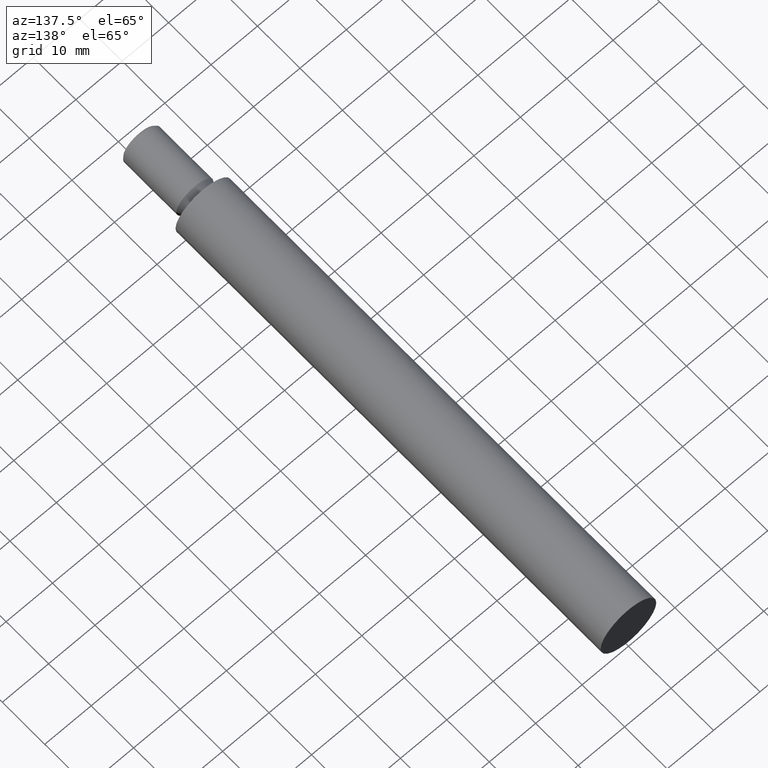
[diagram: clean part render]
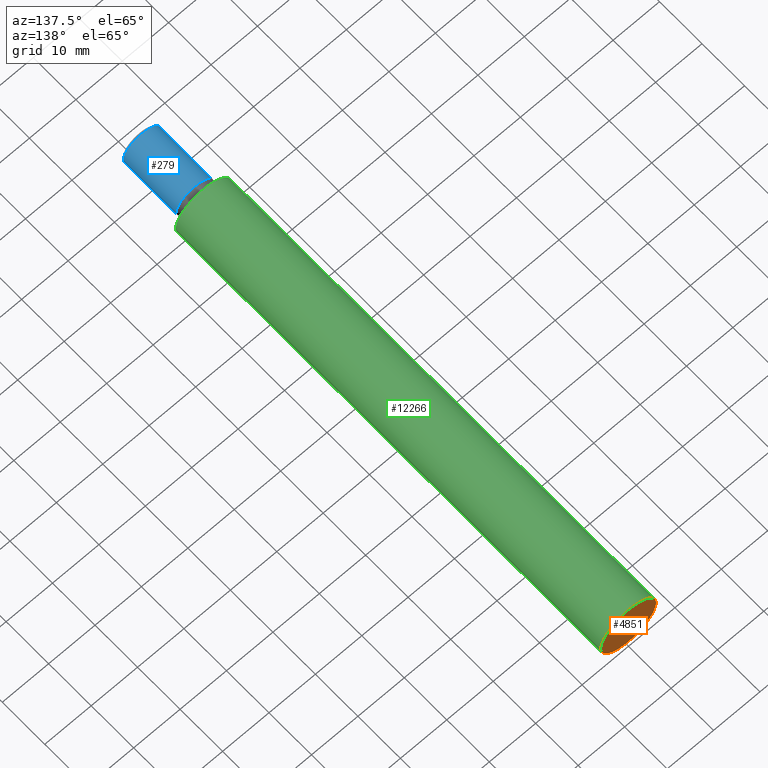
[diagram: same view with three faces highlighted in distinct colors, each labeled with its STEP entity id]
A machine part, auxiliary view with three faces highlighted in distinct colors.
Their STEP definitions:

[orange] entity #4851 — the highlighted planar face has unit normal (-0, 1, 0).
#716 = AXIS2_PLACEMENT_3D ( 'NONE', #12563, #6251, #11535 ) ;
#2180 = DIRECTION ( 'NONE',  ( 1.674721690771509348E-33, -1.000000000000000000, -0.000000000000000000 ) ) ;
#3057 = EDGE_LOOP ( 'NONE', ( #8230 ) ) ;
#3585 = FACE_OUTER_BOUND ( 'NONE', #3057, .T. ) ;
#4851 = ADVANCED_FACE ( 'NONE', ( #3585 ), #10456, .T. ) ;
#5327 = CARTESIAN_POINT ( 'NONE',  ( 5.999999999999993783, 100.0000000000000000, 0.000000000000000000 ) ) ;
#6079 = AXIS2_PLACEMENT_3D ( 'NONE', #11571, #2180, #8388 ) ;
#6251 = DIRECTION ( 'NONE',  ( -1.674721690771509348E-33, 1.000000000000000000, 0.000000000000000000 ) ) ;
#8230 = ORIENTED_EDGE ( 'NONE', *, *, #9337, .F. ) ;
#8388 = DIRECTION ( 'NONE',  ( 1.000000000000000000, 0.000000000000000000, 0.000000000000000000 ) ) ;
#9337 = EDGE_CURVE ( 'NONE', #10508, #10508, #11388, .T. ) ;
#10456 = PLANE ( 'NONE',  #716 ) ;
#10508 = VERTEX_POINT ( 'NONE', #5327 ) ;
#11388 = CIRCLE ( 'NONE', #6079, 5.999999999999993783 ) ;
#11535 = DIRECTION ( 'NONE',  ( -1.000000000000000000, -1.674721690771509348E-33, 0.000000000000000000 ) ) ;
#11571 = CARTESIAN_POINT ( 'NONE',  ( 0.000000000000000000, 100.0000000000000000, 0.000000000000000000 ) ) ;
#12563 = CARTESIAN_POINT ( 'NONE',  ( 8.414078224621741091E-66, 100.0000000000000000, 0.000000000000000000 ) ) ;

[blue] entity #279 — the highlighted cylindrical surface (bore or boss wall) has radius 4 mm, axis along (0, -1, -0).
#279 = ADVANCED_FACE ( 'NONE', ( #4987, #5639 ), #12717, .T. ) ;
#499 = DIRECTION ( 'NONE',  ( 1.000000000000000000, 0.000000000000000000, 0.000000000000000000 ) ) ;
#633 = ORIENTED_EDGE ( 'NONE', *, *, #4124, .T. ) ;
#758 = DIRECTION ( 'NONE',  ( 1.000000000000000000, 0.000000000000000000, 0.000000000000000000 ) ) ;
#1807 = CARTESIAN_POINT ( 'NONE',  ( 1.917556335933378563E-31, -14.50000000000001599, 0.000000000000000000 ) ) ;
#1893 = EDGE_LOOP ( 'NONE', ( #633 ) ) ;
#2463 = CARTESIAN_POINT ( 'NONE',  ( 1.925929944387235853E-31, -15.00000000000000000, 0.000000000000000000 ) ) ;
#2609 = EDGE_CURVE ( 'NONE', #3130, #3130, #12686, .T. ) ;
#3130 = VERTEX_POINT ( 'NONE', #10631 ) ;
#4124 = EDGE_CURVE ( 'NONE', #5594, #5594, #7247, .T. ) ;
#4578 = CARTESIAN_POINT ( 'NONE',  ( 1.708216124586939521E-31, -2.000000000000000000, 0.000000000000000000 ) ) ;
#4759 = DIRECTION ( 'NONE',  ( -1.674721690771513454E-33, 1.000000000000000000, 0.000000000000000000 ) ) ;
#4987 = FACE_OUTER_BOUND ( 'NONE', #1893, .T. ) ;
#5594 = VERTEX_POINT ( 'NONE', #10590 ) ;
#5639 = FACE_OUTER_BOUND ( 'NONE', #7241, .T. ) ;
#7241 = EDGE_LOOP ( 'NONE', ( #12842 ) ) ;
#7247 = CIRCLE ( 'NONE', #8137, 4.000000000000000888 ) ;
#7485 = AXIS2_PLACEMENT_3D ( 'NONE', #2463, #8669, #499 ) ;
#8137 = AXIS2_PLACEMENT_3D ( 'NONE', #1807, #4759, #758 ) ;
#8669 = DIRECTION ( 'NONE',  ( 1.674721690771509348E-33, -1.000000000000000000, -0.000000000000000000 ) ) ;
#8797 = DIRECTION ( 'NONE',  ( 1.000000000000000000, 0.000000000000000000, 0.000000000000000000 ) ) ;
#9563 = AXIS2_PLACEMENT_3D ( 'NONE', #4578, #11927, #8797 ) ;
#10590 = CARTESIAN_POINT ( 'NONE',  ( 4.000000000000000888, -14.50000000000001599, 0.000000000000000000 ) ) ;
#10631 = CARTESIAN_POINT ( 'NONE',  ( 4.000000000000000000, -2.000000000000000000, 0.000000000000000000 ) ) ;
#11927 = DIRECTION ( 'NONE',  ( 1.674721690771509348E-33, -1.000000000000000000, -0.000000000000000000 ) ) ;
#12686 = CIRCLE ( 'NONE', #9563, 4.000000000000000000 ) ;
#12717 = CYLINDRICAL_SURFACE ( 'NONE', #7485, 4.000000000000000888 ) ;
#12842 = ORIENTED_EDGE ( 'NONE', *, *, #2609, .T. ) ;

[green] entity #12266 — the highlighted cylindrical surface (bore or boss wall) has radius 6 mm, axis along (0, -1, -0).
#170 = VERTEX_POINT ( 'NONE', #1275 ) ;
#1275 = CARTESIAN_POINT ( 'NONE',  ( 6.000000000000009770, 1.004833014462907251E-32, 0.000000000000000000 ) ) ;
#1479 = EDGE_CURVE ( 'NONE', #170, #170, #8252, .T. ) ;
#2131 = AXIS2_PLACEMENT_3D ( 'NONE', #12404, #10212, #8251 ) ;
#2164 = ORIENTED_EDGE ( 'NONE', *, *, #1479, .F. ) ;
#2180 = DIRECTION ( 'NONE',  ( 1.674721690771509348E-33, -1.000000000000000000, -0.000000000000000000 ) ) ;
#2192 = EDGE_LOOP ( 'NONE', ( #2164 ) ) ;
#4858 = ORIENTED_EDGE ( 'NONE', *, *, #9337, .T. ) ;
#5327 = CARTESIAN_POINT ( 'NONE',  ( 5.999999999999993783, 100.0000000000000000, 0.000000000000000000 ) ) ;
#5523 = DIRECTION ( 'NONE',  ( 1.674721690771509348E-33, -1.000000000000000000, -0.000000000000000000 ) ) ;
#6006 = AXIS2_PLACEMENT_3D ( 'NONE', #12799, #5523, #6531 ) ;
#6079 = AXIS2_PLACEMENT_3D ( 'NONE', #11571, #2180, #8388 ) ;
#6531 = DIRECTION ( 'NONE',  ( 1.000000000000000000, 1.674721690771509348E-33, 0.000000000000000000 ) ) ;
#6941 = FACE_OUTER_BOUND ( 'NONE', #2192, .T. ) ;
#7730 = EDGE_LOOP ( 'NONE', ( #4858 ) ) ;
#8251 = DIRECTION ( 'NONE',  ( 1.000000000000000000, 0.000000000000000000, 0.000000000000000000 ) ) ;
#8252 = CIRCLE ( 'NONE', #6006, 6.000000000000009770 ) ;
#8388 = DIRECTION ( 'NONE',  ( 1.000000000000000000, 0.000000000000000000, 0.000000000000000000 ) ) ;
#9061 = CYLINDRICAL_SURFACE ( 'NONE', #2131, 6.000000000000001776 ) ;
#9337 = EDGE_CURVE ( 'NONE', #10508, #10508, #11388, .T. ) ;
#9868 = FACE_OUTER_BOUND ( 'NONE', #7730, .T. ) ;
#10212 = DIRECTION ( 'NONE',  ( 1.674721690771509348E-33, -1.000000000000000000, -0.000000000000000000 ) ) ;
#10508 = VERTEX_POINT ( 'NONE', #5327 ) ;
#11388 = CIRCLE ( 'NONE', #6079, 5.999999999999993783 ) ;
#11571 = CARTESIAN_POINT ( 'NONE',  ( 0.000000000000000000, 100.0000000000000000, 0.000000000000000000 ) ) ;
#12266 = ADVANCED_FACE ( 'NONE', ( #9868, #6941 ), #9061, .T. ) ;
#12404 = CARTESIAN_POINT ( 'NONE',  ( 1.925929944387235853E-31, -15.00000000000000000, 0.000000000000000000 ) ) ;
#12799 = CARTESIAN_POINT ( 'NONE',  ( 1.674721690771509485E-31, 0.000000000000000000, 0.000000000000000000 ) ) ;